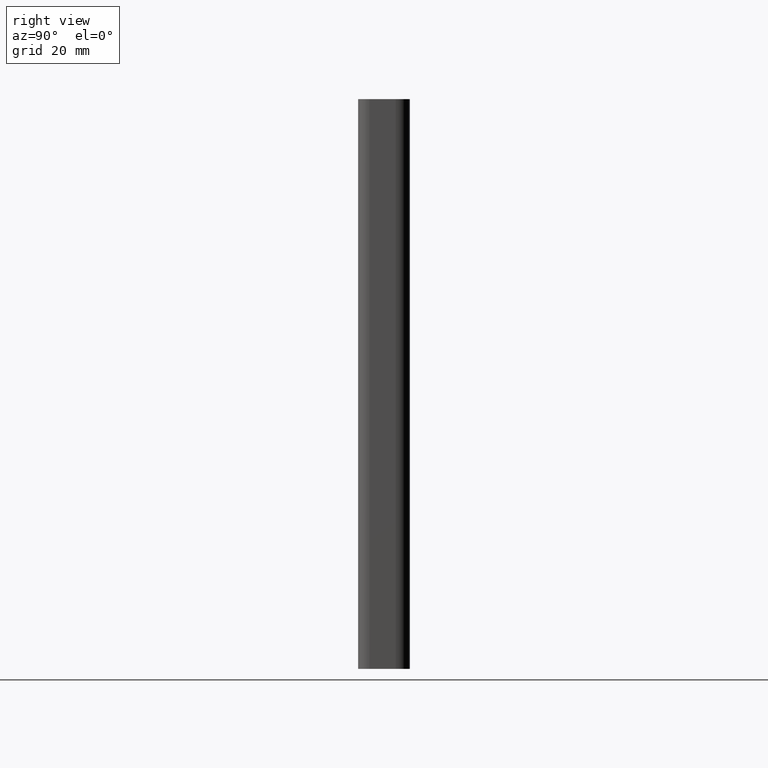
[diagram: clean part render]
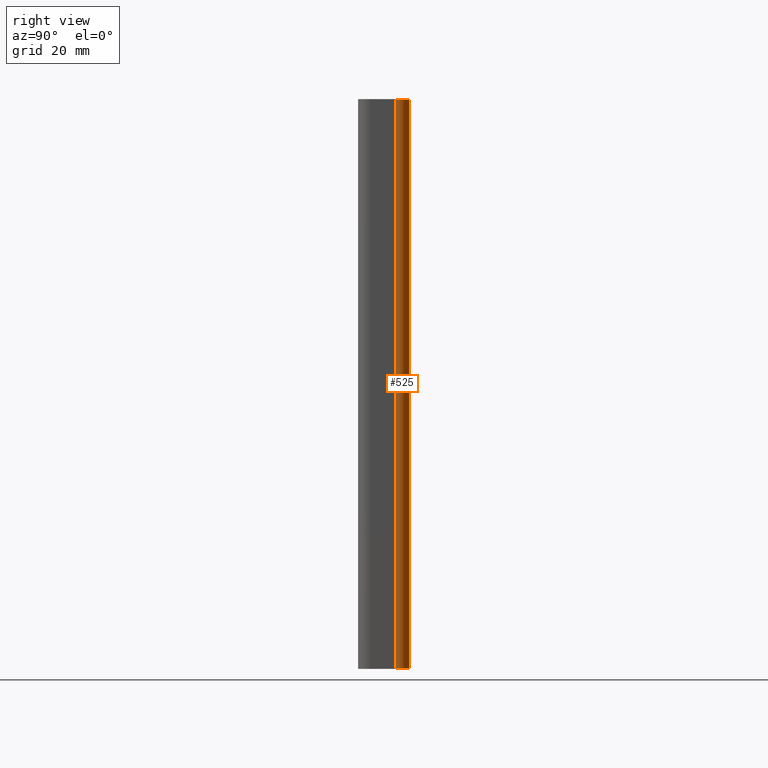
[diagram: same view with one face highlighted and labeled with its STEP entity id]
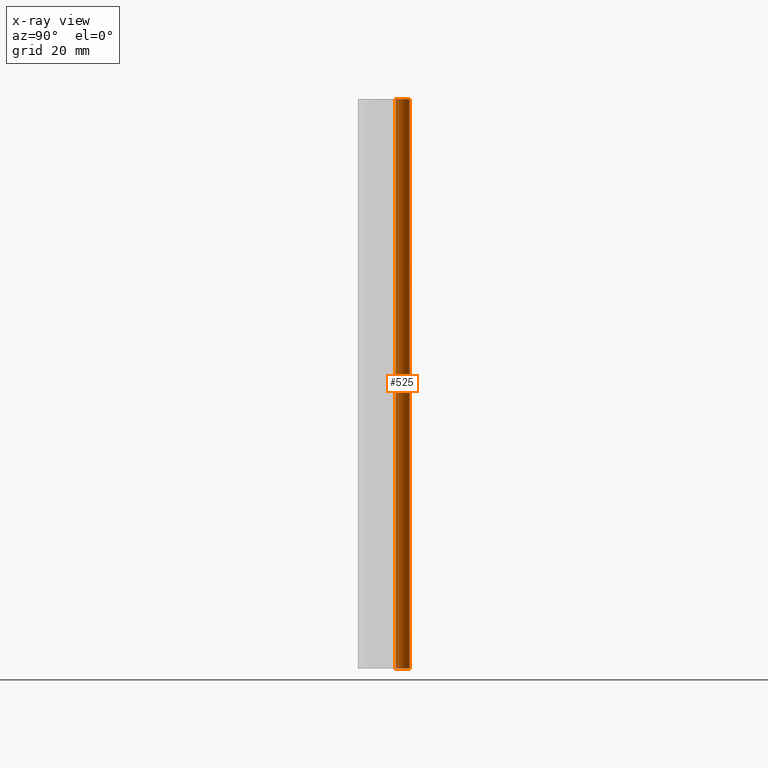
[diagram: x-ray of the same camera — body ghosted, the highlighted face saturated]
A machine part, right view. The second image highlights one B-rep face of the part: STEP entity #525.
The next image is the same camera in x-ray: the body ghosted, the highlighted face saturated — about 0% of this face is hidden behind the body in this view.
In plain terms, the highlighted cylindrical surface (edge-blend (fillet) strip) has radius 2.5 mm, axis along (0, 0, 1).
Its self-contained STEP definition (entity closure, byte-faithful):
#27=CIRCLE('',#589,2.50000000000006);
#28=CIRCLE('',#590,2.50000000000006);
#49=CYLINDRICAL_SURFACE('',#588,2.50000000000006);
#69=FACE_OUTER_BOUND('',#97,.T.);
#97=EDGE_LOOP('',(#391,#392,#393,#394));
#137=LINE('',#859,#187);
#138=LINE('',#865,#188);
#187=VECTOR('',#694,10.);
#188=VECTOR('',#701,10.);
#237=VERTEX_POINT('',#855);
#238=VERTEX_POINT('',#857);
#239=VERTEX_POINT('',#861);
#240=VERTEX_POINT('',#863);
#301=EDGE_CURVE('',#237,#238,#137,.T.);
#302=EDGE_CURVE('',#239,#237,#27,.T.);
#303=EDGE_CURVE('',#240,#238,#28,.T.);
#304=EDGE_CURVE('',#239,#240,#138,.T.);
#391=ORIENTED_EDGE('',*,*,#302,.T.);
#392=ORIENTED_EDGE('',*,*,#301,.T.);
#393=ORIENTED_EDGE('',*,*,#303,.F.);
#394=ORIENTED_EDGE('',*,*,#304,.F.);
#525=ADVANCED_FACE('',(#69),#49,.T.);
#588=AXIS2_PLACEMENT_3D('',#860,#695,#696);
#589=AXIS2_PLACEMENT_3D('',#862,#697,#698);
#590=AXIS2_PLACEMENT_3D('',#864,#699,#700);
#694=DIRECTION('',(0.,0.,1.));
#695=DIRECTION('center_axis',(0.,0.,1.));
#696=DIRECTION('ref_axis',(1.,-1.06048503312192E-11,0.));
#697=DIRECTION('center_axis',(0.,0.,1.));
#698=DIRECTION('ref_axis',(1.,-1.06048503312192E-11,0.));
#699=DIRECTION('center_axis',(0.,0.,1.));
#700=DIRECTION('ref_axis',(1.,-1.06048503312192E-11,0.));
#701=DIRECTION('',(0.,0.,1.));
#855=CARTESIAN_POINT('',(37.6726497308102,1.79999999999871,0.));
#857=CARTESIAN_POINT('',(37.6726497308102,1.79999999999871,100.));
#859=CARTESIAN_POINT('',(37.6726497308102,1.79999999999871,0.));
#860=CARTESIAN_POINT('Origin',(37.6726497308102,-0.700000000001371,0.));
#861=CARTESIAN_POINT('',(40.1726497308103,-0.700000000027883,0.));
#862=CARTESIAN_POINT('Origin',(37.6726497308102,-0.700000000001371,0.));
#863=CARTESIAN_POINT('',(40.1726497308103,-0.700000000027883,100.));
#864=CARTESIAN_POINT('Origin',(37.6726497308102,-0.700000000001371,100.));
#865=CARTESIAN_POINT('',(40.1726497308103,-0.700000000027883,0.));